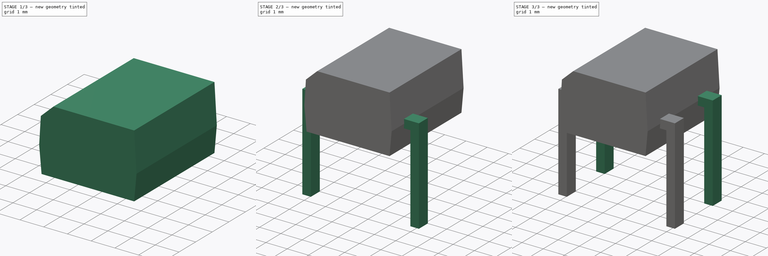
[diagram: build sequence overview — one tinted view per stage of 3, left to right]
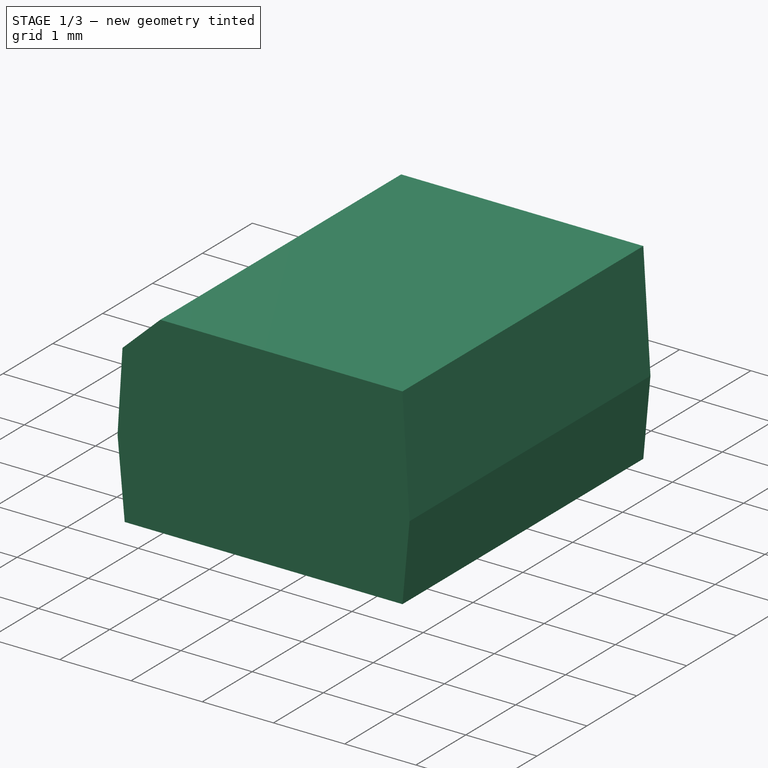
[diagram: stage 1 of 3 — iso view after this stage's code; geometry added in this stage tinted green]
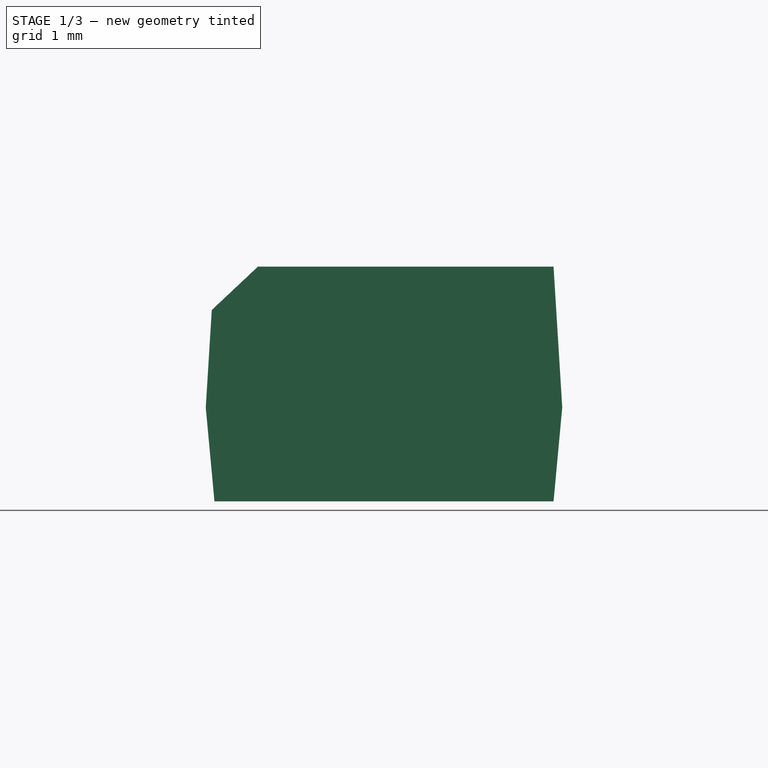
[diagram: stage 1 of 3 — front view after this stage's code; geometry added in this stage tinted green]
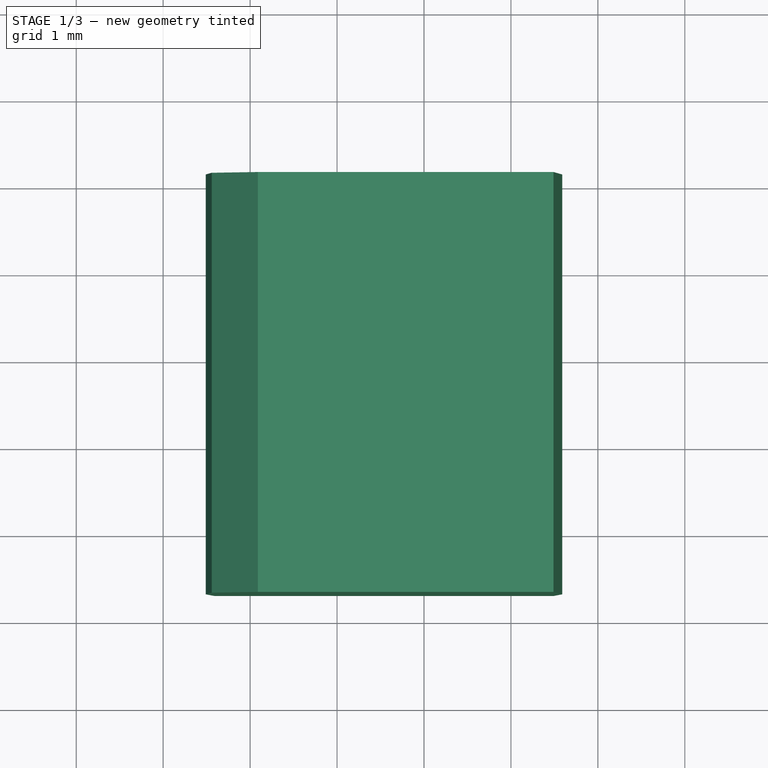
[diagram: stage 1 of 3 — top view after this stage's code; geometry added in this stage tinted green]
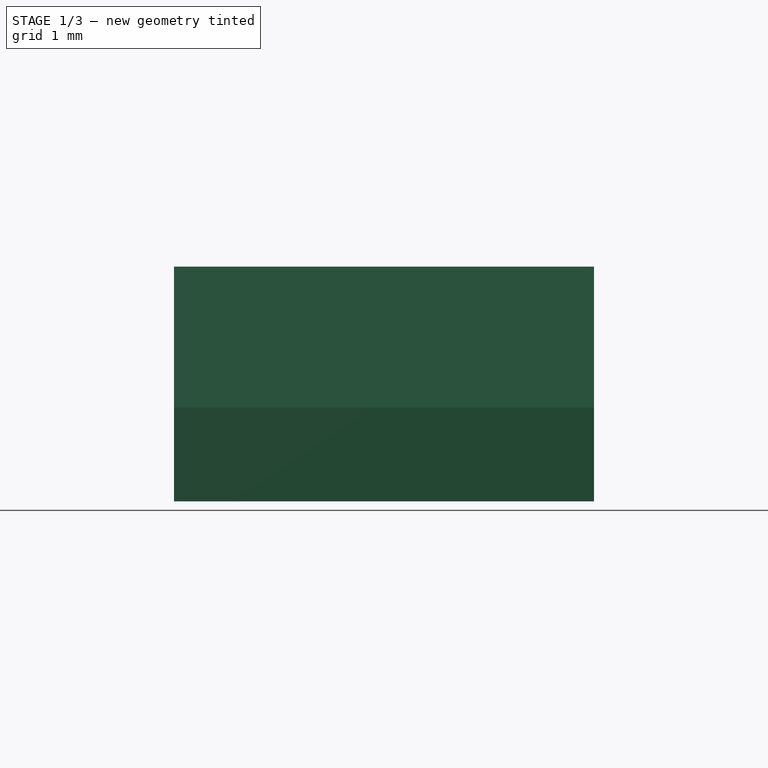
[diagram: stage 1 of 3 — right view after this stage's code; geometry added in this stage tinted green]
FCSTD DOCUMENT  (FreeCAD 0.16R6712 (Git))
Label: Diode_Bridge_DIP-4_W5.08mm_P2.54mm
License: All rights reserved
LicenseURL: http://en.wikipedia.org/wiki/All_rights_reserved
objects: Sketcher::SketchObject×3, PartDesign::Pad×3, Spreadsheet::Sheet×1, PartDesign::Chamfer×1, Part::MultiFuse×1
note: 11 computed .brp shape members not serialized (recipe doc carries the construction recipe); baked Part::Feature solids carry a one-line shape summary decoded from their .brp

FEATURE [Spreadsheet::Sheet] Spreadsheet
  cells = A1=px; B1(px)=2.54; A2=py; B2(py)=5.08; A3=wx; B3(wx)=4.83; A4=wy; B4(wy)=4.1; A5=wz; B5(wz)=2.7
FEATURE [Sketcher::SketchObject] Sketch
  Placement = pos=(0,-1.27,0) rot=(1,0,0;1.5708rad)
  expr: Placement.Base.y = -Spreadsheet.px / 2
  expr: Constraints[17] = Spreadsheet.wz * 0.6
  expr: Constraints[15] = (Spreadsheet.py - Spreadsheet.wy) / 2
  expr: Constraints[14] = Spreadsheet.wy - 0.2
  expr: Constraints[10] = Spreadsheet.wy
  expr: Constraints[8] = Spreadsheet.wz
  sketch-geometry (6):
    g0: LineSegment StartX=0.59 StartY=0.2 StartZ=0 EndX=4.49 EndY=0.2 EndZ=0
    g1: LineSegment StartX=0.59 StartY=0.2 StartZ=0 EndX=0.49 EndY=1.28 EndZ=0
    g2: LineSegment StartX=0.49 StartY=1.28 StartZ=0 EndX=0.59 EndY=2.9 EndZ=0
    g3: LineSegment StartX=0.59 StartY=2.9 StartZ=0 EndX=4.49 EndY=2.9 EndZ=0
    g4: LineSegment StartX=4.49 StartY=2.9 StartZ=0 EndX=4.59 EndY=1.28 EndZ=0
    g5: LineSegment StartX=4.59 StartY=1.28 StartZ=0 EndX=4.49 EndY=0.2 EndZ=0
  constraints (18):
    c: Horizontal(g0)
    c: Coincident(g1,g0)
    c: Coincident(g2,g1)
    c: Coincident(g3,g2)
    c: Horizontal(g3)
    c: Coincident(g5,g4)
    c: Coincident(g5,g0)
    c: DistanceY(g1,g4) = 0
    c: DistanceY(g0,g4) = 2.7
    c: Coincident(g4,g3)
    c: DistanceX(g1,g4) = 4.1
    c: DistanceX(g3,g0) = 0
    c: DistanceX(g0,g2) = 0
    c: DistanceX(g1,g0) = 0.1
    c: DistanceX(g0,g0) = 3.9
    c: DistanceX(g-1,g1) = 0.49
    c: DistanceY(g-1,g0) = 0.2
    c: DistanceY(g4,g3) = 1.62
FEATURE [PartDesign::Pad] Pad
  Length = 4.83
  Length2 = 100
  Midplane = true
  Placement = pos=(0,-1.27,0) rot=(1,0,0;1.5708rad)
  Sketch = -> Sketch
  Type = 0
  expr: Length = Spreadsheet.wx
FEATURE [PartDesign::Chamfer] Chamfer
  Base = -> Pad [Edge11]
  Placement = pos=(0,-1.27,0) rot=(1,0,0;1.5708rad)
  Size = 0.5
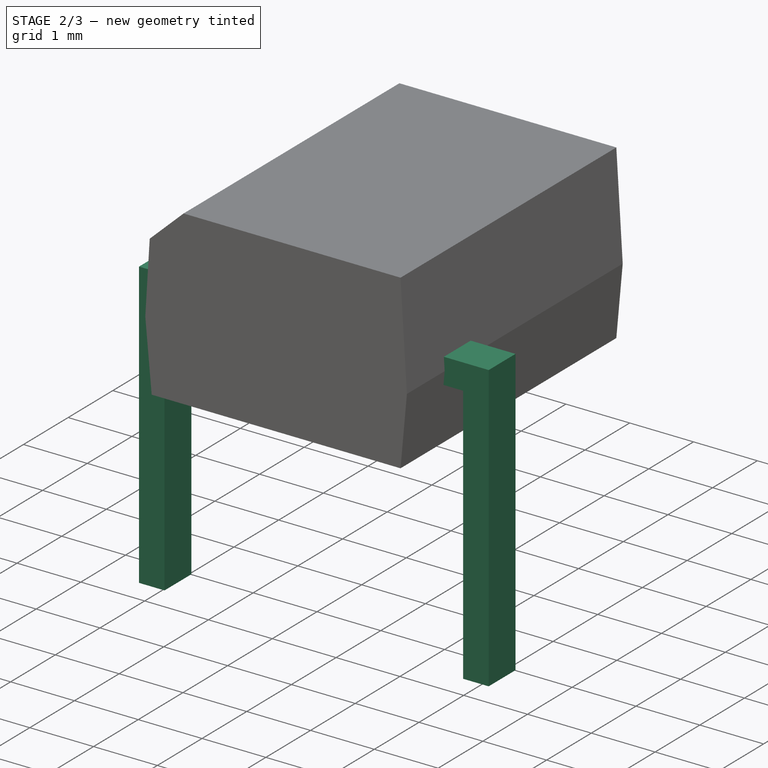
[diagram: stage 2 of 3 — iso view after this stage's code; geometry added in this stage tinted green]
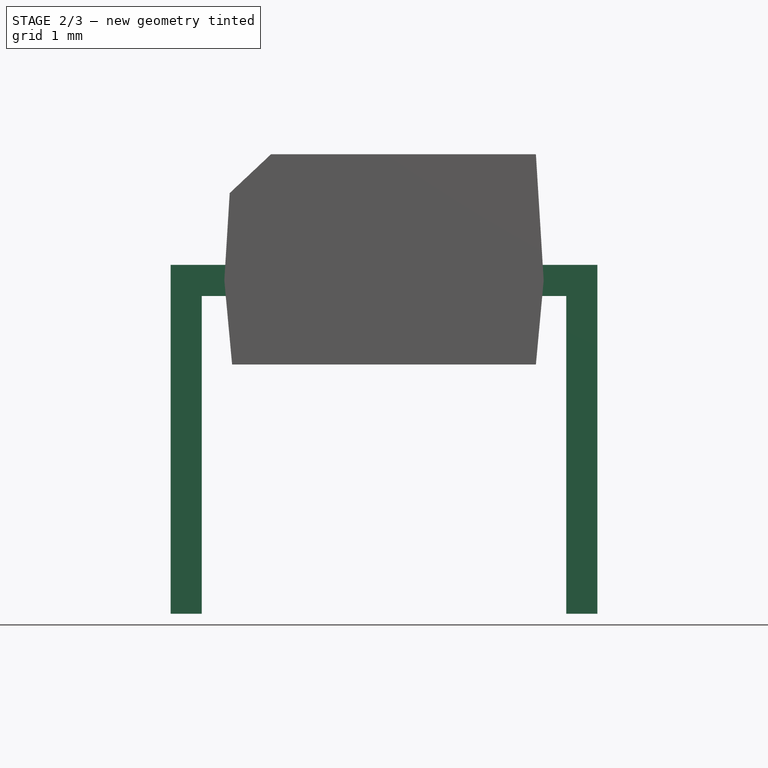
[diagram: stage 2 of 3 — front view after this stage's code; geometry added in this stage tinted green]
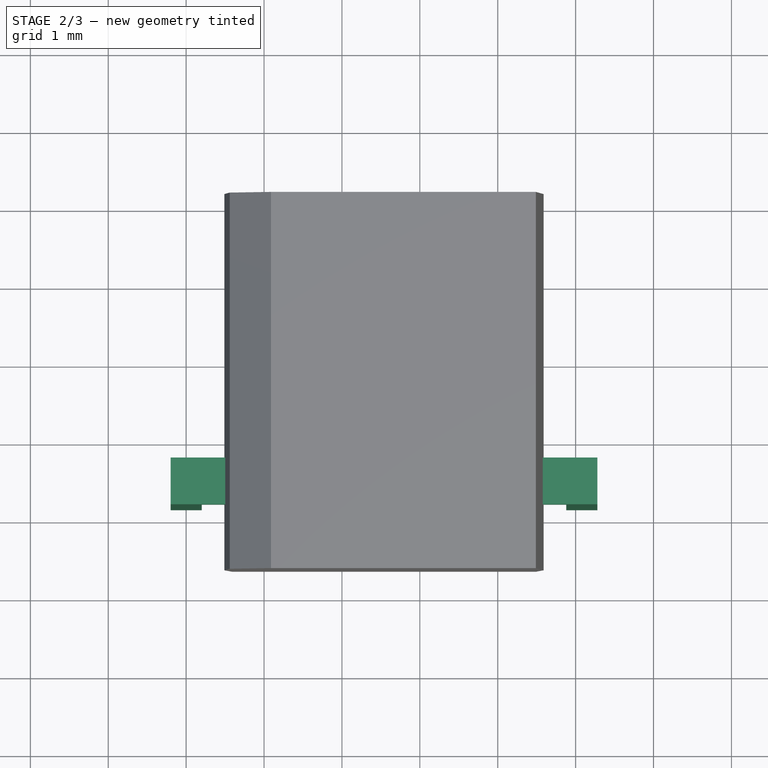
[diagram: stage 2 of 3 — top view after this stage's code; geometry added in this stage tinted green]
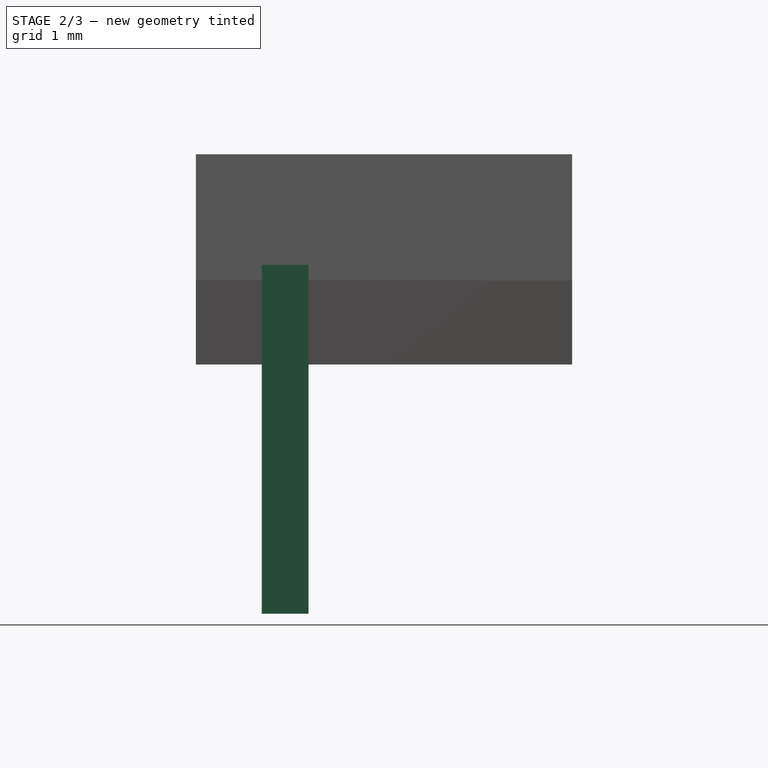
[diagram: stage 2 of 3 — right view after this stage's code; geometry added in this stage tinted green]
FEATURE [Sketcher::SketchObject] Sketch002
  Placement = pos=(0,-2.54,0) rot=(1,0,0;1.5708rad)
  expr: Placement.Base.y = -Spreadsheet.px
  expr: Constraints[22] = Spreadsheet.py + 0.4
  expr: Constraints[8] = Spreadsheet.wz * 0.4 + 0.2 + 0.2
  sketch-geometry (8):
    g0: LineSegment StartX=-0.2 StartY=-3 StartZ=0 EndX=0.2 EndY=-3 EndZ=0
    g1: LineSegment StartX=5.28 StartY=1.48 StartZ=0 EndX=-0.2 EndY=1.48 EndZ=0
    g2: LineSegment StartX=-0.2 StartY=1.48 StartZ=0 EndX=-0.2 EndY=-3 EndZ=0
    g3: LineSegment StartX=5.28 StartY=1.48 StartZ=0 EndX=5.28 EndY=-3 EndZ=0
    g4: LineSegment StartX=5.28 StartY=-3 StartZ=0 EndX=4.88 EndY=-3 EndZ=0
    g5: LineSegment StartX=4.88 StartY=-3 StartZ=0 EndX=4.88 EndY=1.08 EndZ=0
    g6: LineSegment StartX=4.88 StartY=1.08 StartZ=0 EndX=0.2 EndY=1.08 EndZ=0
    g7: LineSegment StartX=0.2 StartY=1.08 StartZ=0 EndX=0.2 EndY=-3 EndZ=0
  constraints (24):
    c: Coincident(g1,g2)
    c: Coincident(g2,g0)
    c: Horizontal(g0)
    c: Horizontal(g1)
    c: Vertical(g2)
    c: DistanceX(g0,g-1) = 0.2
    c: DistanceX(g0,g0) = 0.4
    c: DistanceY(g0,g-1) = 3
    c: DistanceY(g-1,g1) = 1.48
    c: Coincident(g3,g1)
    c: Vertical(g3)
    c: Coincident(g4,g3)
    c: Horizontal(g4)
    c: Coincident(g5,g4)
    c: Vertical(g5)
    c: Coincident(g6,g5)
    c: Horizontal(g6)
    c: Coincident(g7,g6)
    c: Coincident(g7,g0)
    c: Vertical(g7)
    c: DistanceX(g4,g4) = 0.4
    c: DistanceY(g5,g1) = 0.4
    c: DistanceX(g1,g1) = 5.48
    c: DistanceY(g4,g0) = 0
FEATURE [PartDesign::Pad] Pad002
  Length = 0.6
  Length2 = 100
  Midplane = true
  Placement = pos=(0,-2.54,0) rot=(1,0,0;1.5708rad)
  Sketch = -> Sketch002
  Type = 0
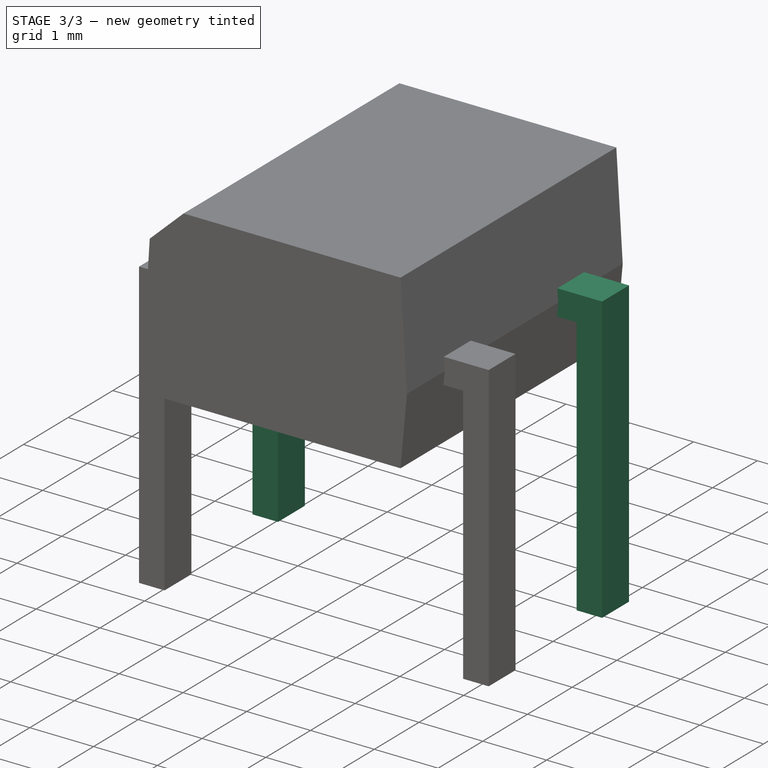
[diagram: stage 3 of 3 — iso view after this stage's code; geometry added in this stage tinted green]
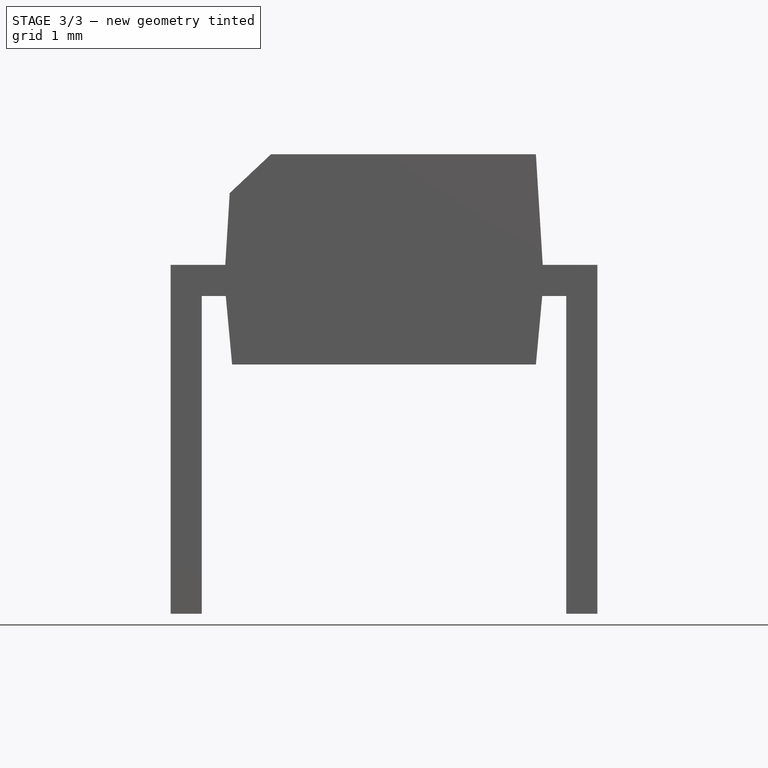
[diagram: stage 3 of 3 — front view after this stage's code; geometry added in this stage tinted green]
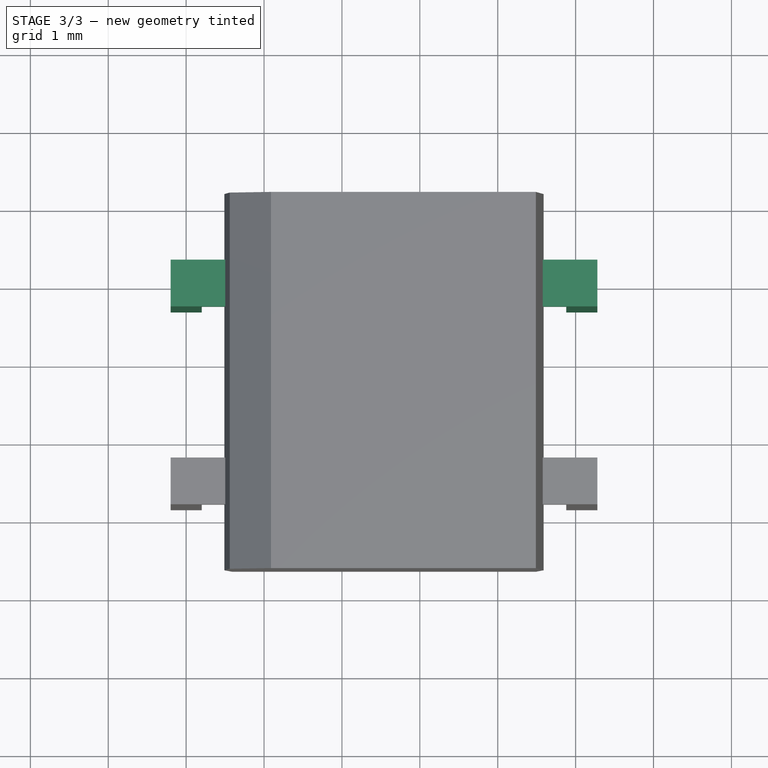
[diagram: stage 3 of 3 — top view after this stage's code; geometry added in this stage tinted green]
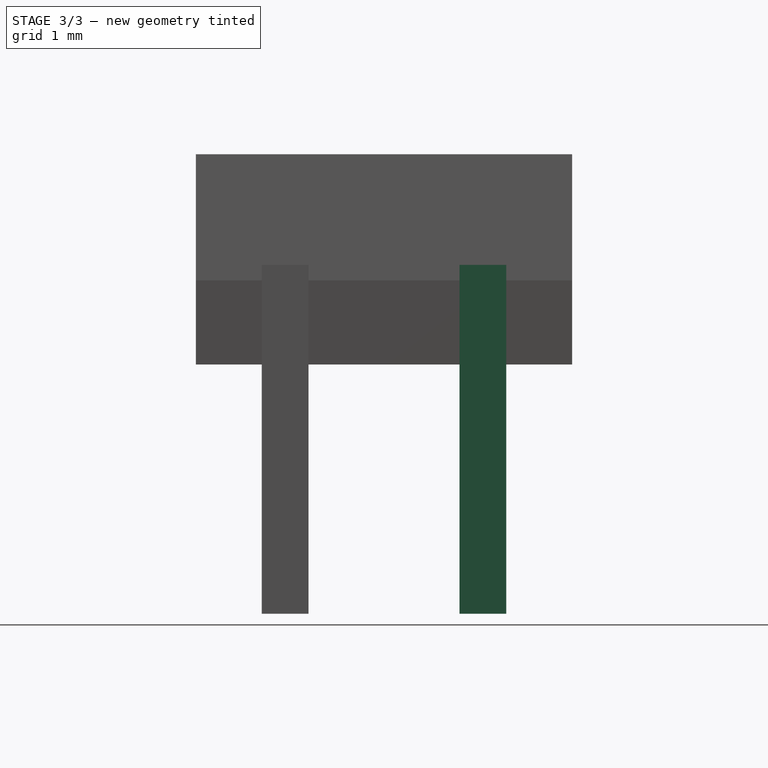
[diagram: stage 3 of 3 — right view after this stage's code; geometry added in this stage tinted green]
FEATURE [Sketcher::SketchObject] Sketch001
  Placement = pos=(0,0,0) rot=(1,0,0;1.5708rad)
  expr: Constraints[22] = Spreadsheet.py + 0.4
  expr: Constraints[8] = Spreadsheet.wz * 0.4 + 0.2 + 0.2
  sketch-geometry (8):
    g0: LineSegment StartX=-0.2 StartY=-3 StartZ=0 EndX=0.2 EndY=-3 EndZ=0
    g1: LineSegment StartX=5.28 StartY=1.48 StartZ=0 EndX=-0.2 EndY=1.48 EndZ=0
    g2: LineSegment StartX=-0.2 StartY=1.48 StartZ=0 EndX=-0.2 EndY=-3 EndZ=0
    g3: LineSegment StartX=5.28 StartY=1.48 StartZ=0 EndX=5.28 EndY=-3 EndZ=0
    g4: LineSegment StartX=5.28 StartY=-3 StartZ=0 EndX=4.88 EndY=-3 EndZ=0
    g5: LineSegment StartX=4.88 StartY=-3 StartZ=0 EndX=4.88 EndY=1.08 EndZ=0
    g6: LineSegment StartX=4.88 StartY=1.08 StartZ=0 EndX=0.2 EndY=1.08 EndZ=0
    g7: LineSegment StartX=0.2 StartY=1.08 StartZ=0 EndX=0.2 EndY=-3 EndZ=0
  constraints (24):
    c: Coincident(g1,g2)
    c: Coincident(g2,g0)
    c: Horizontal(g0)
    c: Horizontal(g1)
    c: Vertical(g2)
    c: DistanceX(g0,g-1) = 0.2
    c: DistanceX(g0,g0) = 0.4
    c: DistanceY(g0,g-1) = 3
    c: DistanceY(g-1,g1) = 1.48
    c: Coincident(g3,g1)
    c: Vertical(g3)
    c: Coincident(g4,g3)
    c: Horizontal(g4)
    c: Coincident(g5,g4)
    c: Vertical(g5)
    c: Coincident(g6,g5)
    c: Horizontal(g6)
    c: Coincident(g7,g6)
    c: Coincident(g7,g0)
    c: Vertical(g7)
    c: DistanceX(g4,g4) = 0.4
    c: DistanceY(g5,g1) = 0.4
    c: DistanceX(g1,g1) = 5.48
    c: DistanceY(g4,g0) = 0
FEATURE [PartDesign::Pad] Pad001
  Length = 0.6
  Length2 = 100
  Midplane = true
  Placement = pos=(0,0,0) rot=(1,0,0;1.5708rad)
  Sketch = -> Sketch001
  Type = 0
FEATURE [Part::MultiFuse] Pad001_mp_cp  label="Diode_Bridge_DIP-4_W5.08mm_P2.54mm"
  Shapes = -> [Pad001,Pad002,Chamfer]
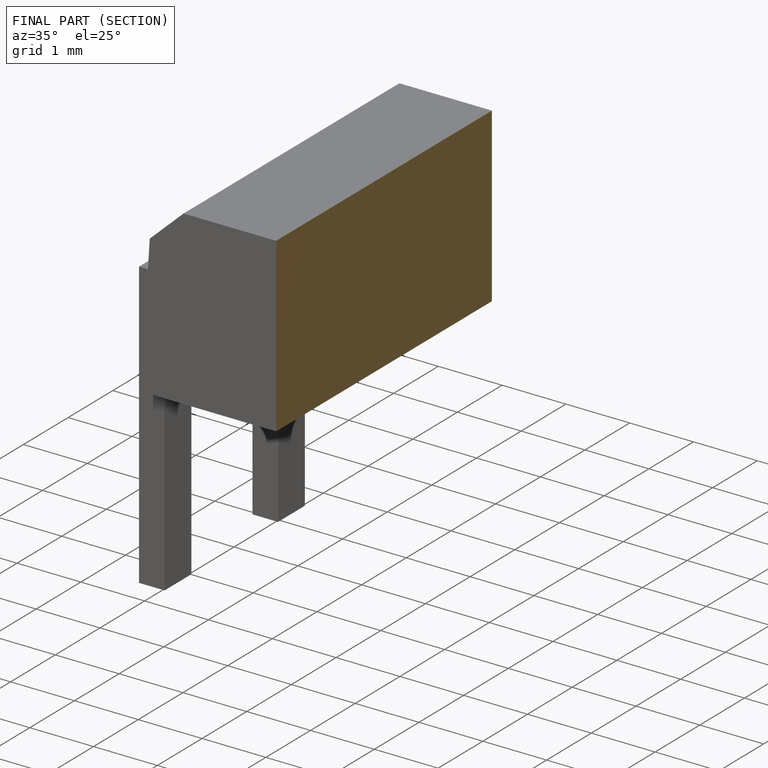
[diagram: finished part — half-section view (interior)]
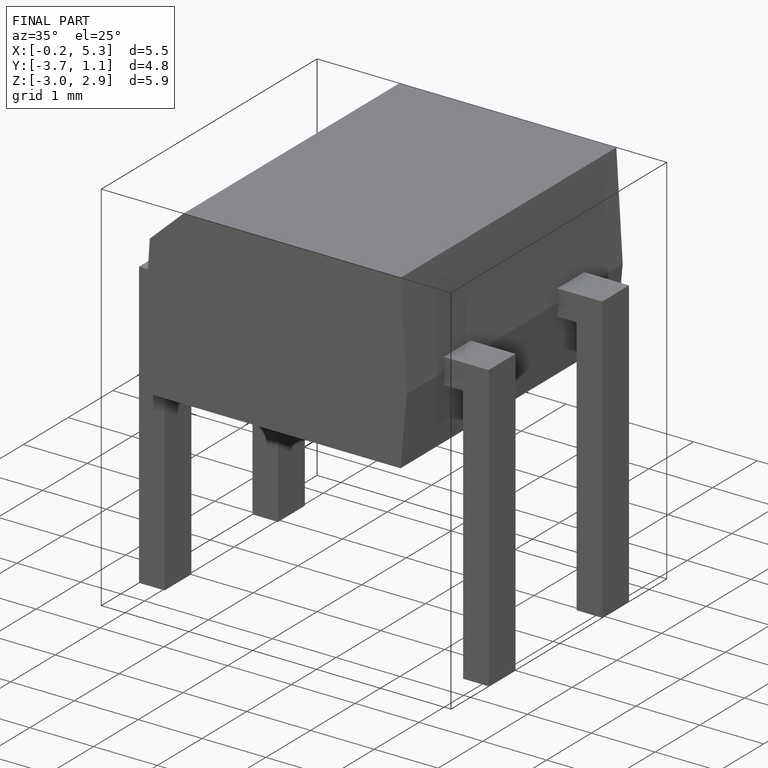
[diagram: finished part — iso view with bounding-box wireframe]
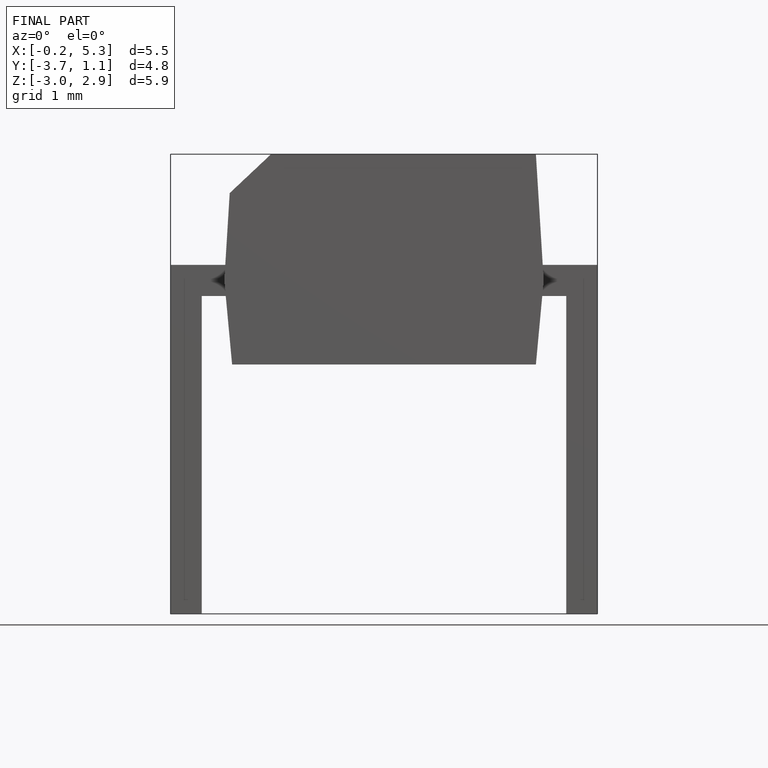
[diagram: finished part — front view with bounding-box wireframe]
